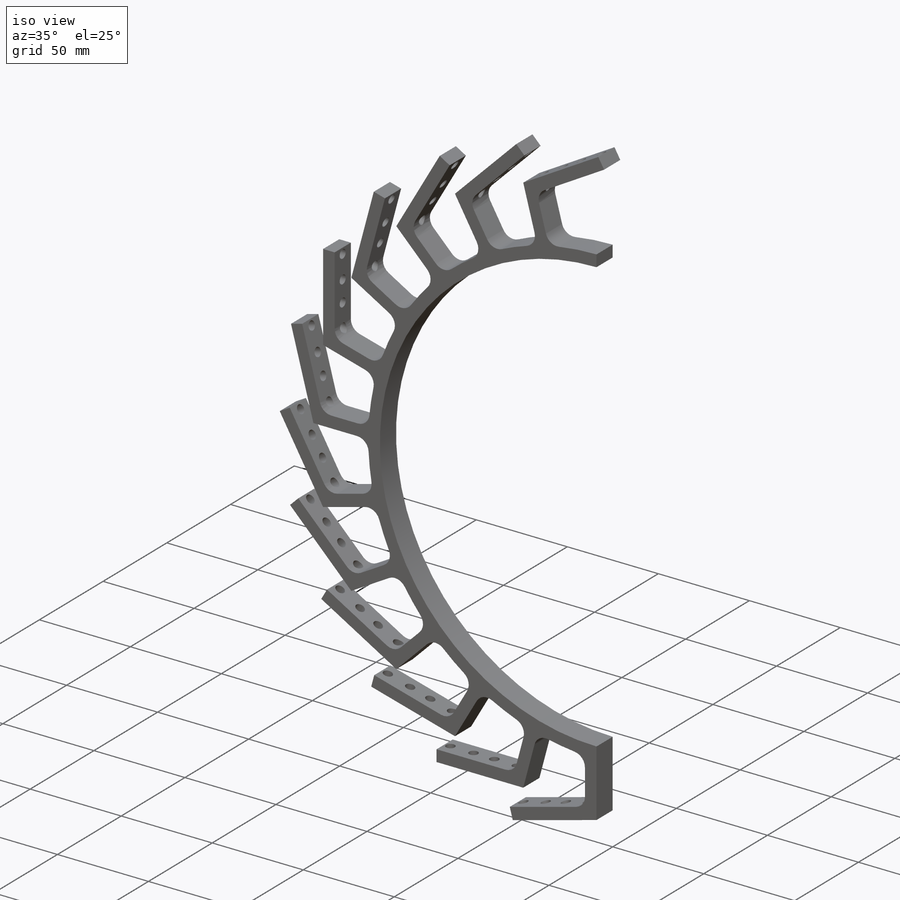
[diagram: iso view]
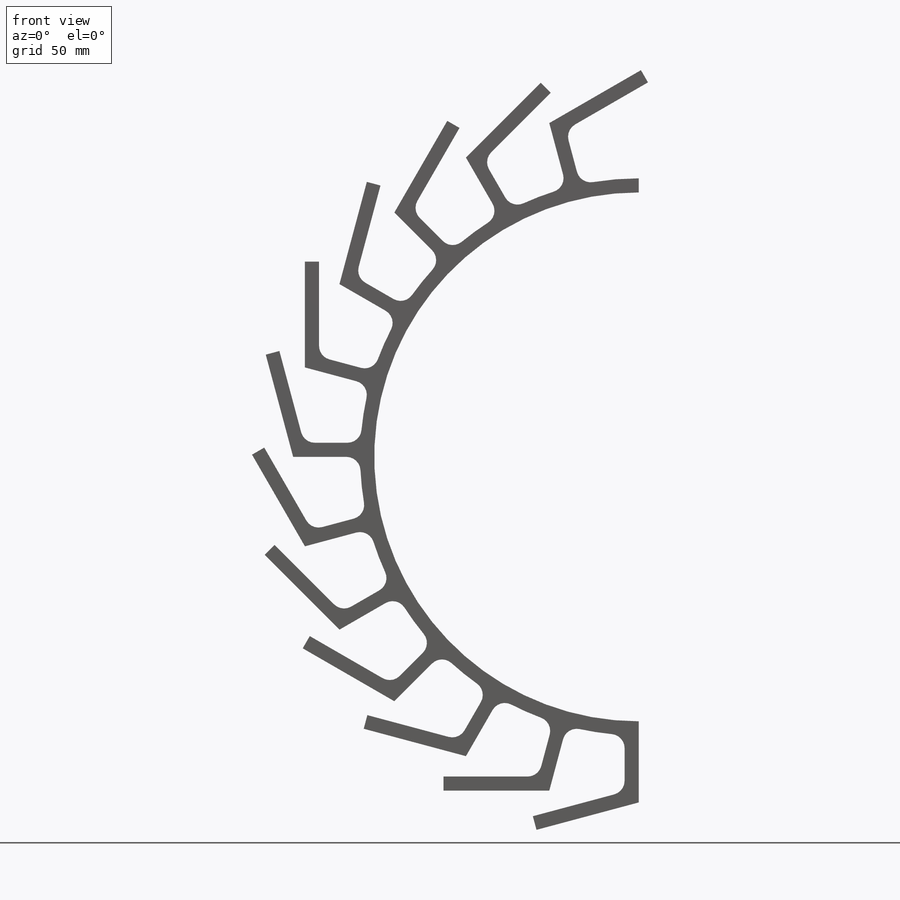
[diagram: front view]
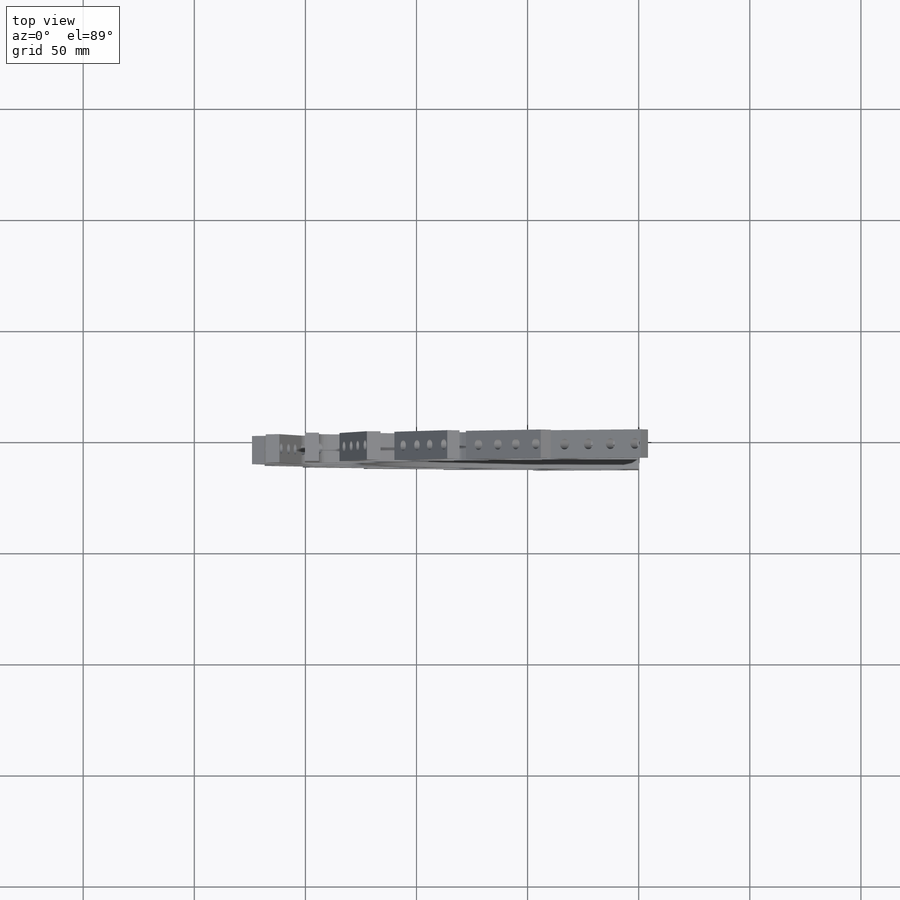
[diagram: top view]
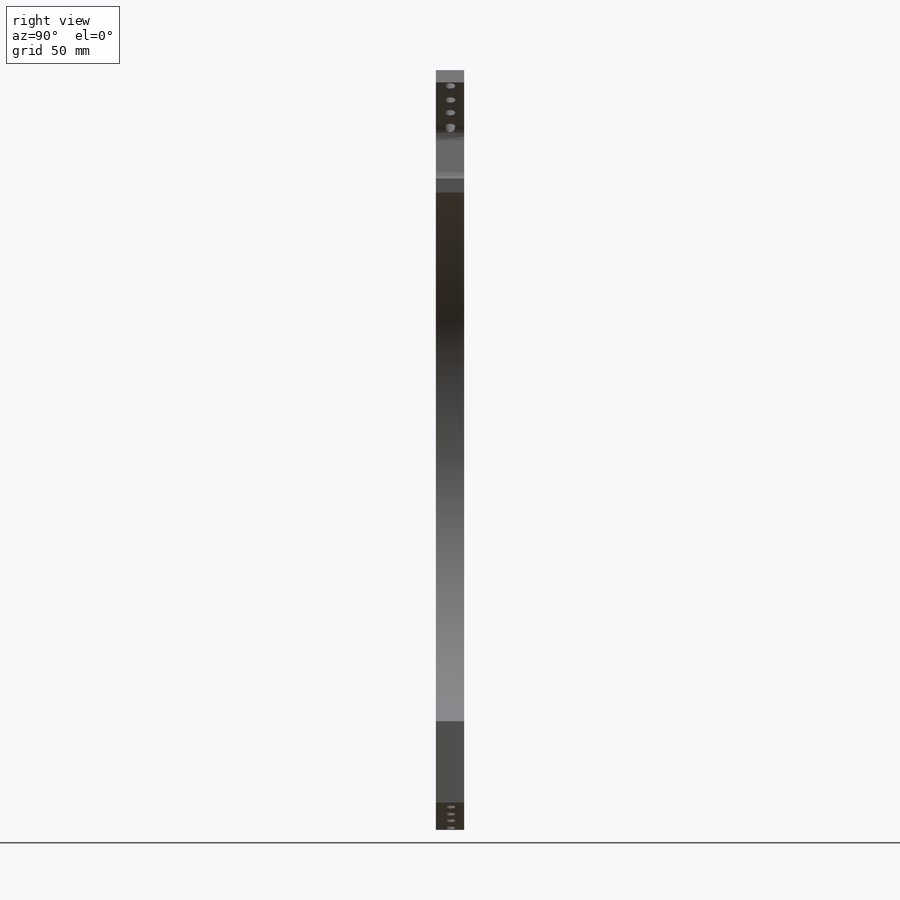
[diagram: right view]
SOLIDWORKS PART (.sldprt)
format: sldprt  version: not decoded by parser v0  size: 768,512 bytes
history: native  units: mm
features: sketch x3, extrude x2, fillet x2, pattern_circular x2, material x1, cut_extrude x1 (+11 scaffold rows collapsed)
feature tree (22):
  scaffold x11  (default folders/planes/origin — collapsed)
  material  "Polyetheretherketone (PEEK)"
  sketch  "Sketch1"  dims[c1.D1=237.998mm c1.D2=~266.493123mm c2.D1=118.999mm c2.D2=6.35mm c3.D1=118.999mm]
  extrude  "Boss-Extrude1"  Depth=12.7mm
  sketch  "Sketch2"  dims[c1.D1=6.35mm c1.D2=6.35mm c1.D3=47.625mm c1.D4=~43.925767mm c2.D4=105.0deg c2.D5=30.1625mm c2.D6=6.35mm c3.D6=1.0deg c4.D6=0.0mm]
  extrude  "Boss-Extrude2"  [1 undecoded]
  fillet  "Fillet1"  Radius=6.35mm
  pattern_circular  "CirPattern1"  Count=12 Angle=15deg
  fillet  "Fillet2"  Radius=6.35mm
  sketch  "Sketch3"  dims[D1=4.7625mm D2=3.175mm D3=7.9375mm D4=20.32mm D5=31.75mm]
  cut_extrude  "Cut-Extrude1"  Depth=12.7mm
  pattern_circular  "CirPattern8"  Count=12 Angle=15deg
decode coverage: 9 of 10 modeling features carry decoded parameters
note: ~ marks probable driven/reference dimensions
note: 1 parameter value undecoded
note: suppression state not decoded; provenance and decode notes live in map.json
